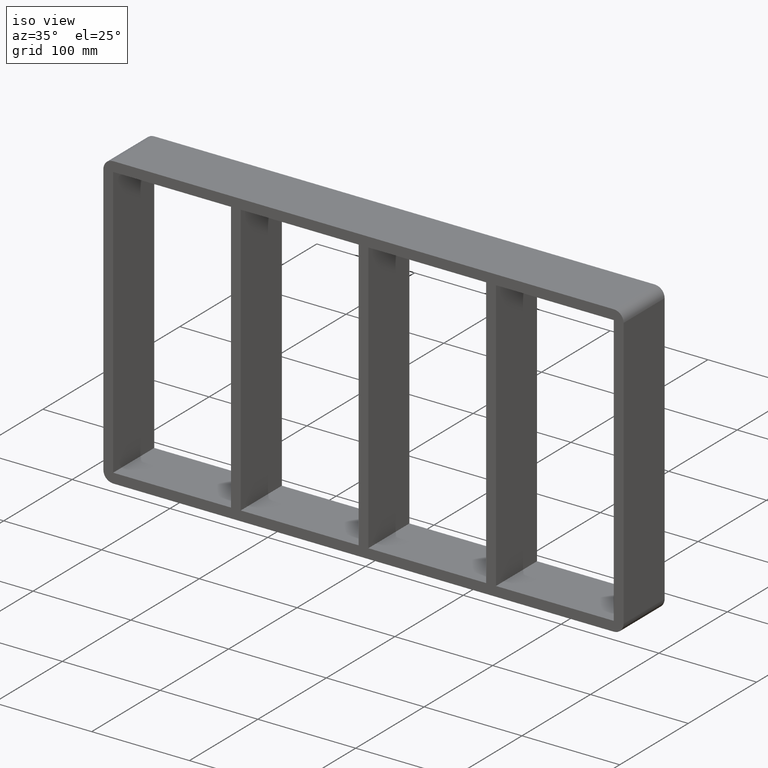
[diagram: clean part render]
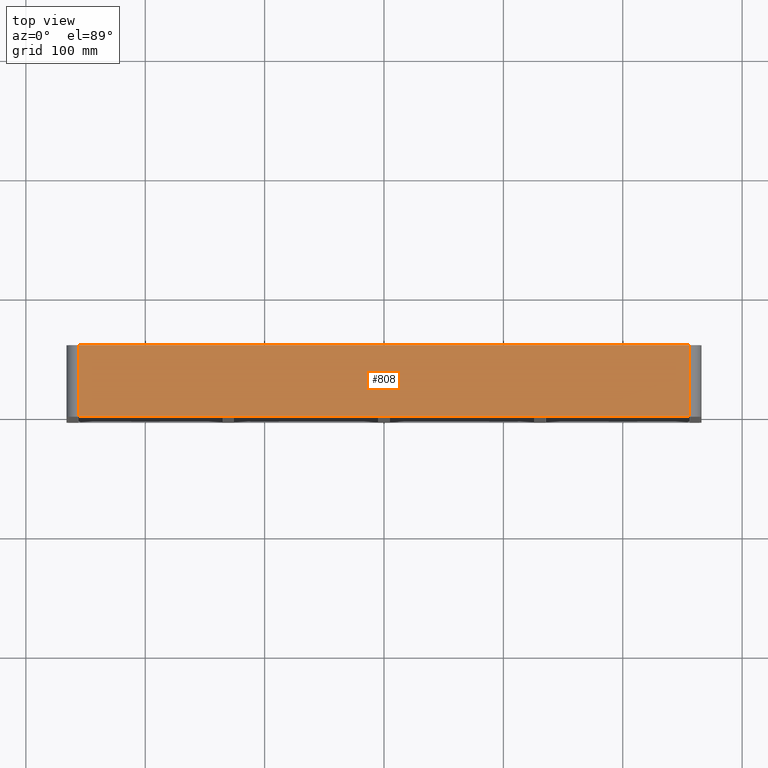
[diagram: tour spotlight — one face highlighted and labeled with its STEP entity id]
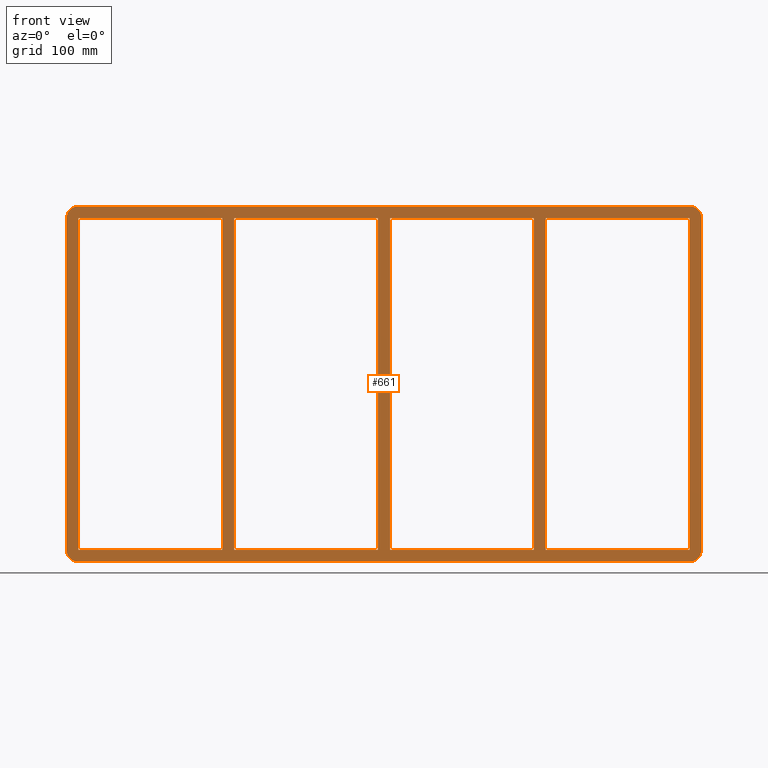
[diagram: tour spotlight — one face highlighted and labeled with its STEP entity id]
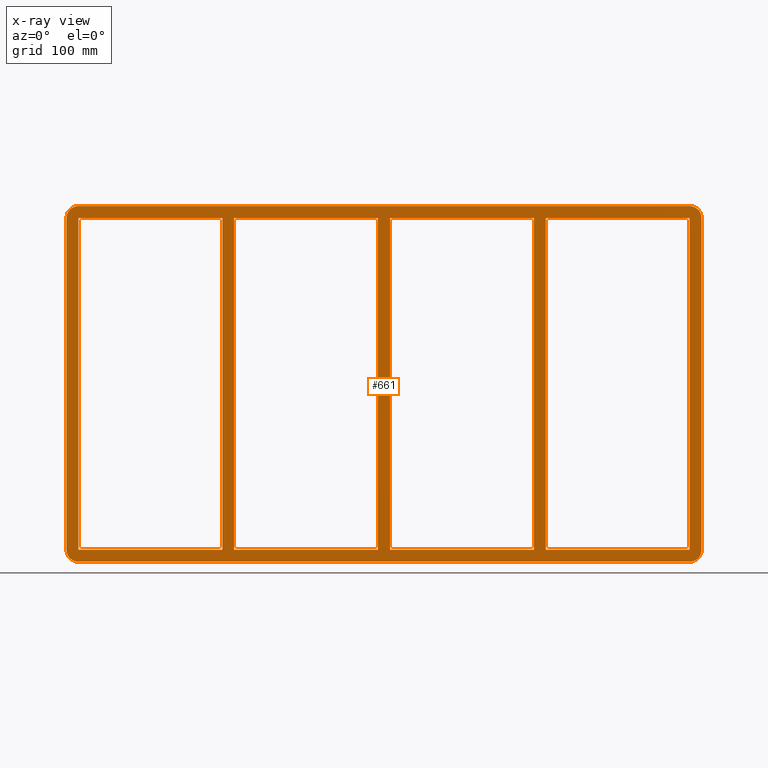
[diagram: x-ray of the same camera — body ghosted, this tour face saturated]
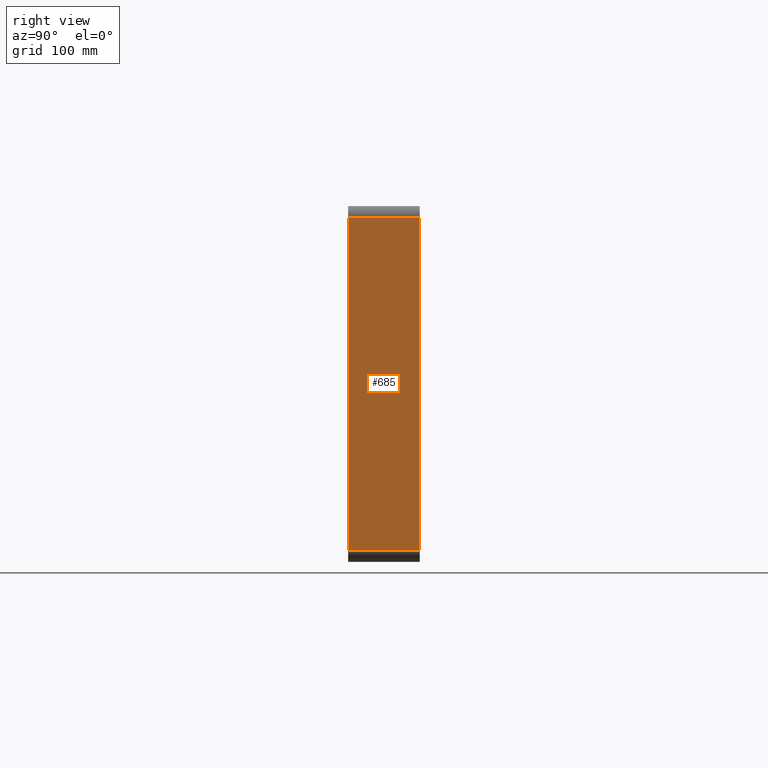
[diagram: tour spotlight — one face highlighted and labeled with its STEP entity id]
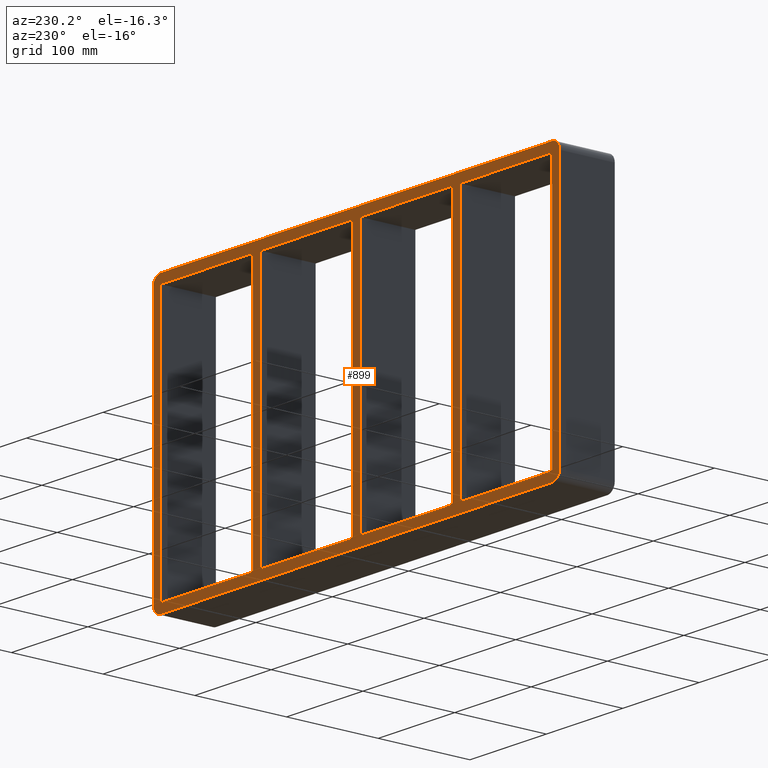
[diagram: tour spotlight — one face highlighted and labeled with its STEP entity id]
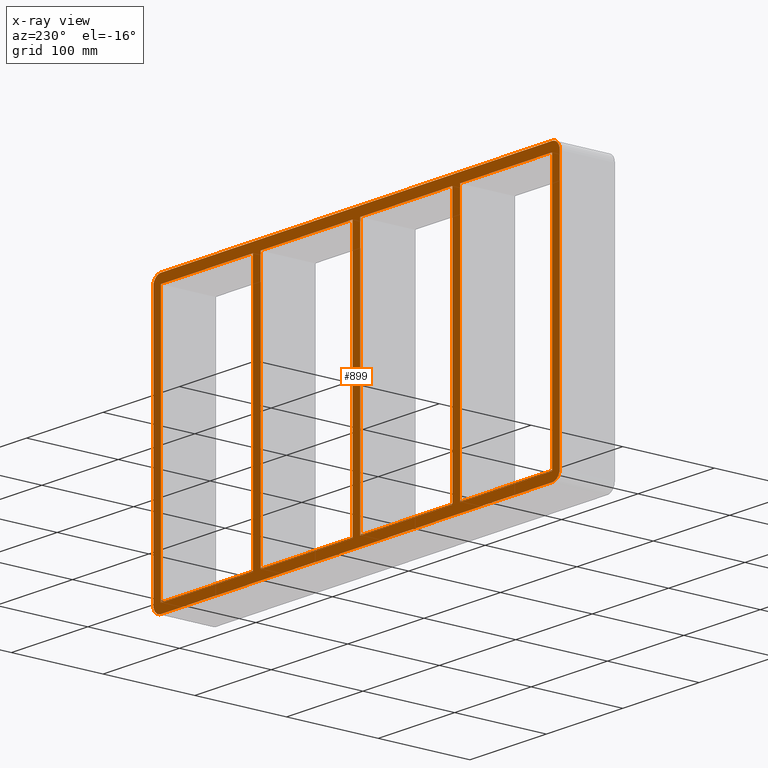
[diagram: x-ray of the same camera — body ghosted, this tour face saturated]
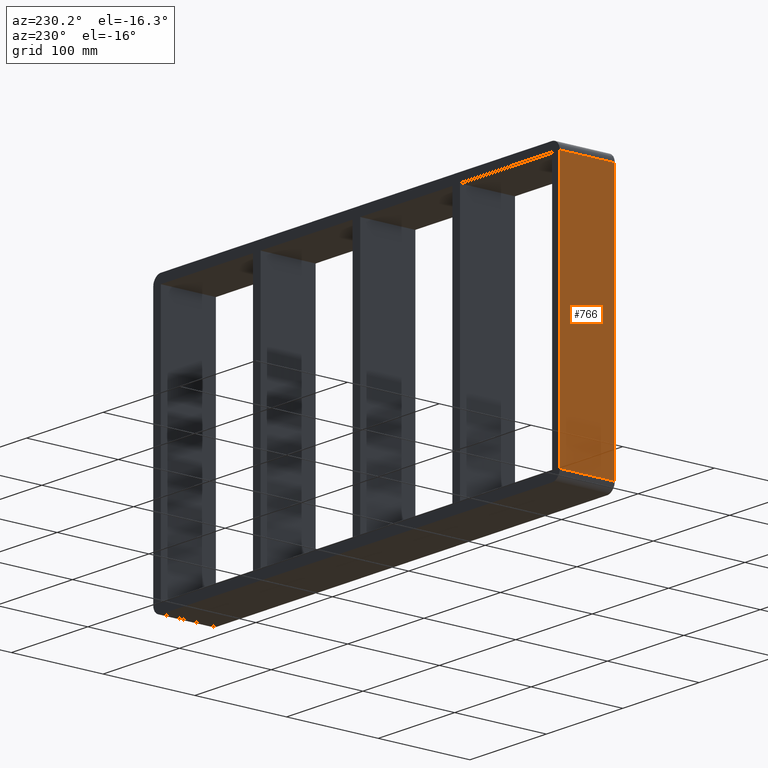
[diagram: tour spotlight — one face highlighted and labeled with its STEP entity id]
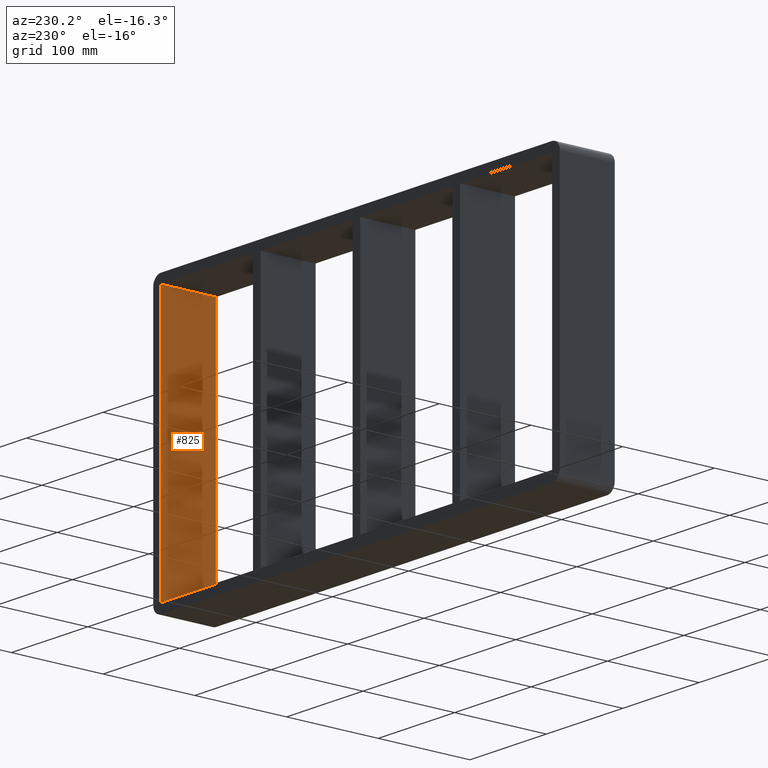
[diagram: tour spotlight — one face highlighted and labeled with its STEP entity id]
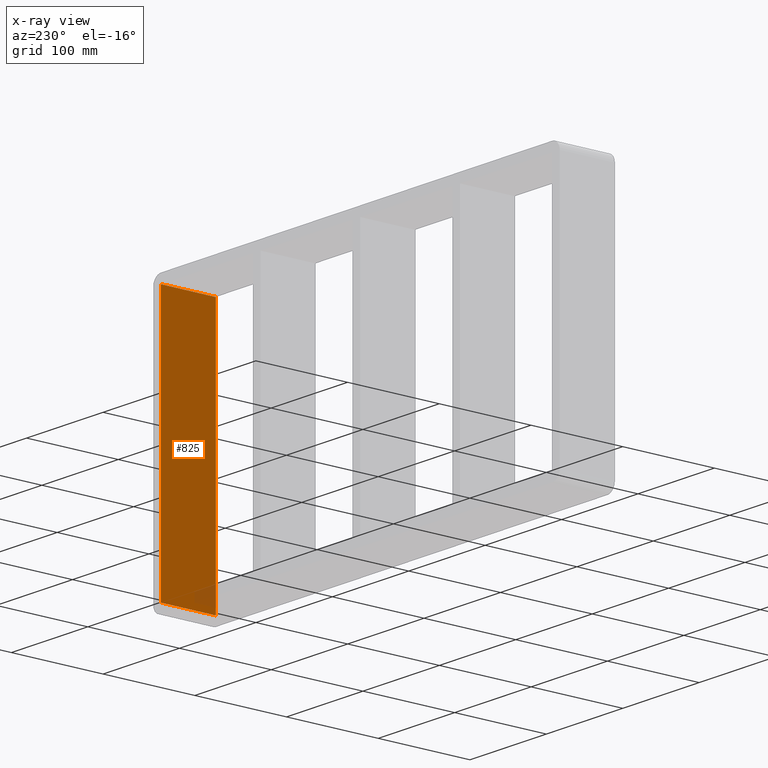
[diagram: x-ray of the same camera — body ghosted, this tour face saturated]
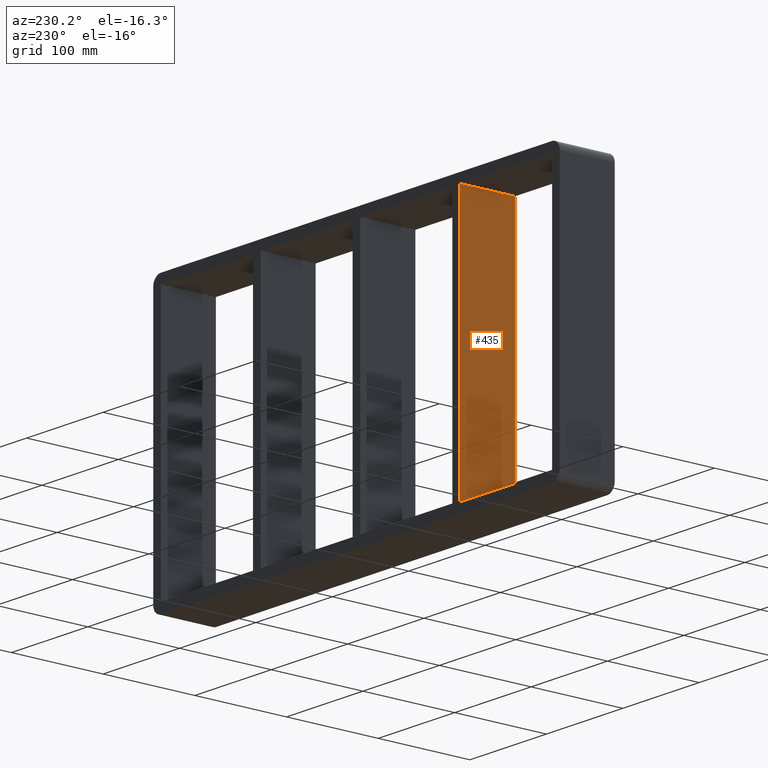
[diagram: tour spotlight — one face highlighted and labeled with its STEP entity id]
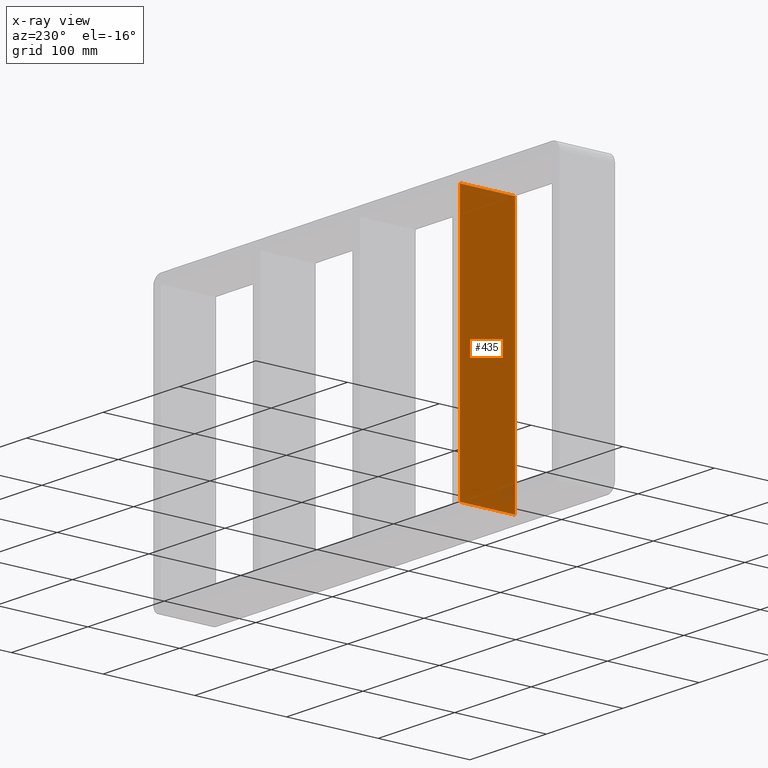
[diagram: x-ray of the same camera — body ghosted, this tour face saturated]
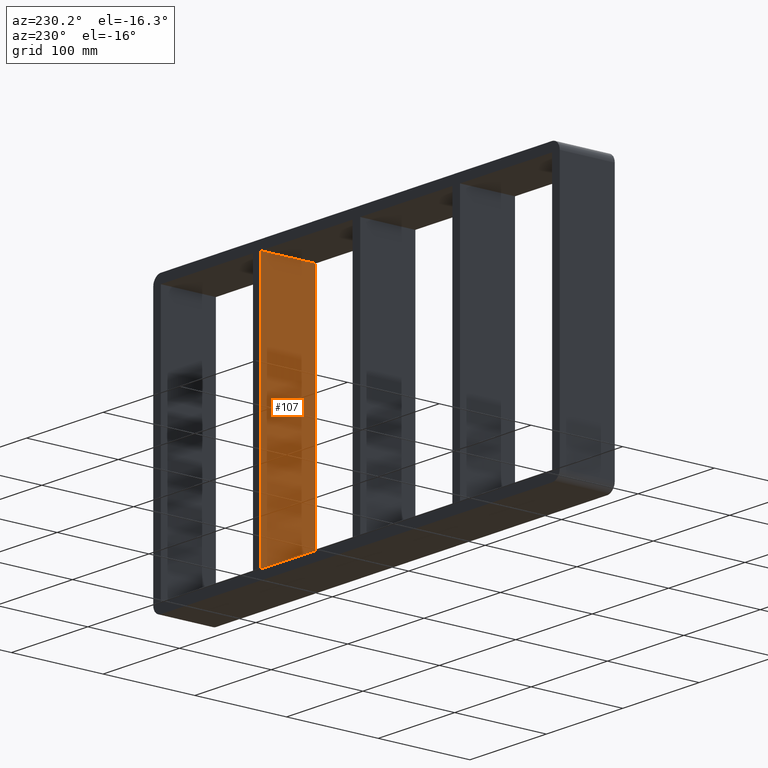
[diagram: tour spotlight — one face highlighted and labeled with its STEP entity id]
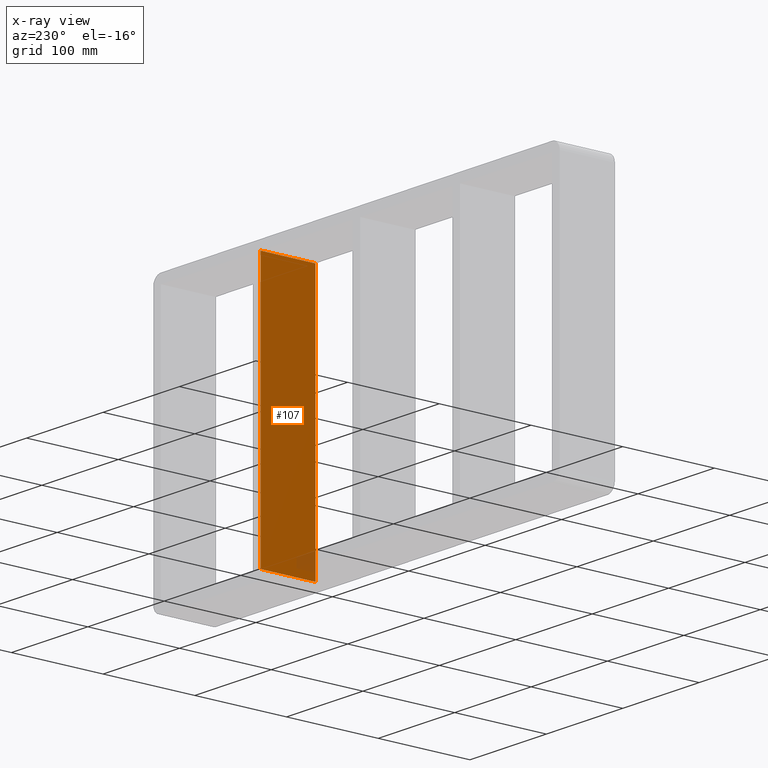
[diagram: x-ray of the same camera — body ghosted, this tour face saturated]
A machine part: a face-by-face anatomy tour. The part has 26 B-rep faces; the first image is the clean iso view, then the 8 largest visible faces are spotlighted one at a time (largest first), each with its STEP entity span.

Face 1 — top view, entity #808. In plain terms, the highlighted planar face has unit normal (0, 0, 1).
Definition (entity closure, byte-faithful):
#576=CARTESIAN_POINT('',(256.0,-3.0,149.00000000000003));
#577=VERTEX_POINT('',#576);
#585=CARTESIAN_POINT('',(-256.0,-3.0,149.00000000000003));
#586=VERTEX_POINT('',#585);
#587=CARTESIAN_POINT('',(256.0,-3.0,149.00000000000003));
#588=DIRECTION('',(-1.0,0.0,0.0));
#589=VECTOR('',#588,512.0);
#590=LINE('',#587,#589);
#591=EDGE_CURVE('',#577,#586,#590,.T.);
#693=CARTESIAN_POINT('',(256.0,57.0,149.00000000000003));
#694=VERTEX_POINT('',#693);
#702=CARTESIAN_POINT('',(256.0,57.0,149.00000000000003));
#703=DIRECTION('',(0.0,-1.0,0.0));
#704=VECTOR('',#703,60.0);
#705=LINE('',#702,#704);
#706=EDGE_CURVE('',#694,#577,#705,.T.);
#772=CARTESIAN_POINT('',(-256.0,57.0,149.00000000000003));
#773=VERTEX_POINT('',#772);
#783=CARTESIAN_POINT('',(-256.0,-3.0,149.00000000000003));
#784=DIRECTION('',(0.0,1.0,0.0));
#785=VECTOR('',#784,60.0);
#786=LINE('',#783,#785);
#787=EDGE_CURVE('',#586,#773,#786,.T.);
#792=CARTESIAN_POINT('',(-266.0,0.0,149.00000000000003));
#793=DIRECTION('',(0.0,0.0,1.0));
#794=DIRECTION('',(1.0,0.0,0.0));
#795=AXIS2_PLACEMENT_3D('',#792,#793,#794);
#796=PLANE('',#795);
#797=ORIENTED_EDGE('',*,*,#706,.F.);
#798=CARTESIAN_POINT('',(-256.0,57.0,149.00000000000003));
#799=DIRECTION('',(1.0,0.0,0.0));
#800=VECTOR('',#799,512.0);
#801=LINE('',#798,#800);
#802=EDGE_CURVE('',#773,#694,#801,.T.);
#803=ORIENTED_EDGE('',*,*,#802,.F.);
#804=ORIENTED_EDGE('',*,*,#787,.F.);
#805=ORIENTED_EDGE('',*,*,#591,.F.);
#806=EDGE_LOOP('',(#797,#803,#804,#805));
#807=FACE_OUTER_BOUND('',#806,.T.);
#808=ADVANCED_FACE('',(#807),#796,.T.);

Face 2 — front view, entity #661. An x-ray twin of the same camera follows (body ghosted, this face saturated) — the face is partly hidden behind the body. In plain terms, the highlighted planar face has unit normal (0, 1, 0).
Definition (entity closure, byte-faithful):
#73=CARTESIAN_POINT('',(125.49999999999872,-3.0,-139.0));
#74=VERTEX_POINT('',#73);
#75=CARTESIAN_POINT('',(125.49999999999869,-3.0,139.00000000000003));
#76=VERTEX_POINT('',#75);
#77=CARTESIAN_POINT('',(125.49999999999872,-3.0,-139.0));
#78=DIRECTION('',(0.0,0.0,1.0));
#79=VECTOR('',#78,278.0);
#80=LINE('',#77,#79);
#81=EDGE_CURVE('',#74,#76,#80,.T.);
#113=CARTESIAN_POINT('',(135.50000000000728,-3.0,139.00000000000003));
#114=VERTEX_POINT('',#113);
#115=CARTESIAN_POINT('',(135.50000000000728,-3.0,-138.99999999998417));
#116=VERTEX_POINT('',#115);
#117=CARTESIAN_POINT('',(135.50000000000728,-3.0,139.00000000000003));
#118=DIRECTION('',(0.0,0.0,-1.0));
#119=VECTOR('',#118,277.9999999999842);
#120=LINE('',#117,#119);
#121=EDGE_CURVE('',#114,#116,#120,.T.);
#153=CARTESIAN_POINT('',(-5.000000000001279,-3.0,-139.0));
#154=VERTEX_POINT('',#153);
#155=CARTESIAN_POINT('',(-5.000000000001315,-3.0,139.00000000000003));
#156=VERTEX_POINT('',#155);
#157=CARTESIAN_POINT('',(-5.000000000001279,-3.0,-139.0));
#158=DIRECTION('',(0.0,0.0,1.0));
#159=VECTOR('',#158,278.0);
#160=LINE('',#157,#159);
#161=EDGE_CURVE('',#154,#156,#160,.T.);
#193=CARTESIAN_POINT('',(5.000000000007283,-3.0,139.00000000000003));
#194=VERTEX_POINT('',#193);
#195=CARTESIAN_POINT('',(5.000000000007283,-3.0,-138.99999999998417));
#196=VERTEX_POINT('',#195);
#197=CARTESIAN_POINT('',(5.000000000007283,-3.0,139.00000000000003));
#198=DIRECTION('',(0.0,0.0,-1.0));
#199=VECTOR('',#198,277.9999999999842);
#200=LINE('',#197,#199);
#201=EDGE_CURVE('',#194,#196,#200,.T.);
#242=CARTESIAN_POINT('',(-125.49999999999272,-3.0,-138.99999999998417));
#243=VERTEX_POINT('',#242);
#250=CARTESIAN_POINT('',(-5.000000000001279,-3.0,-139.0));
#251=DIRECTION('',(-1.0,0.0,0.0));
#252=VECTOR('',#251,120.49999999999147);
#253=LINE('',#250,#252);
#254=EDGE_CURVE('',#154,#243,#253,.T.);
#272=CARTESIAN_POINT('',(125.49999999999874,-3.0,-139.0));
#273=DIRECTION('',(-1.0,0.0,0.0));
#274=VECTOR('',#273,120.49999999999145);
#275=LINE('',#272,#274);
#276=EDGE_CURVE('',#74,#196,#275,.T.);
#287=CARTESIAN_POINT('',(256.00000000000006,-3.0,-139.0));
#288=VERTEX_POINT('',#287);
#289=CARTESIAN_POINT('',(256.00000000000006,-3.0,-139.0));
#290=DIRECTION('',(-1.0,0.0,0.0));
#291=VECTOR('',#290,120.49999999999275);
#292=LINE('',#289,#291);
#293=EDGE_CURVE('',#288,#116,#292,.T.);
#318=CARTESIAN_POINT('',(-125.49999999999272,-3.0,139.00000000000003));
#319=VERTEX_POINT('',#318);
#320=CARTESIAN_POINT('',(-125.49999999999272,-3.0,139.00000000000003));
#321=DIRECTION('',(1.0,0.0,0.0));
#322=VECTOR('',#321,120.49999999999142);
#323=LINE('',#320,#322);
#324=EDGE_CURVE('',#319,#156,#323,.T.);
#357=CARTESIAN_POINT('',(256.00000000000006,-3.0,139.00000000000003));
#358=VERTEX_POINT('',#357);
#365=CARTESIAN_POINT('',(135.50000000000728,-3.0,139.00000000000003));
#366=DIRECTION('',(1.0,0.0,0.0));
#367=VECTOR('',#366,120.49999999999278);
#368=LINE('',#365,#367);
#369=EDGE_CURVE('',#114,#358,#368,.T.);
#380=CARTESIAN_POINT('',(5.000000000007276,-3.0,139.00000000000003));
#381=DIRECTION('',(1.0,0.0,0.0));
#382=VECTOR('',#381,120.49999999999142);
#383=LINE('',#380,#382);
#384=EDGE_CURVE('',#194,#76,#383,.T.);
#401=CARTESIAN_POINT('',(-135.50000000000128,-3.0,-139.0));
#402=VERTEX_POINT('',#401);
#403=CARTESIAN_POINT('',(-135.50000000000131,-3.0,139.00000000000003));
#404=VERTEX_POINT('',#403);
#405=CARTESIAN_POINT('',(-135.50000000000128,-3.0,-139.0));
#406=DIRECTION('',(0.0,0.0,1.0));
#407=VECTOR('',#406,278.0);
#408=LINE('',#405,#407);
#409=EDGE_CURVE('',#402,#404,#408,.T.);
#441=CARTESIAN_POINT('',(-125.49999999999272,-3.0,139.00000000000003));
#442=DIRECTION('',(0.0,0.0,-1.0));
#443=VECTOR('',#442,277.9999999999842);
#444=LINE('',#441,#443);
#445=EDGE_CURVE('',#319,#243,#444,.T.);
#472=CARTESIAN_POINT('',(-255.99999999999997,-3.0,-139.0));
#473=VERTEX_POINT('',#472);
#480=CARTESIAN_POINT('',(-135.50000000000128,-3.0,-139.0));
#481=DIRECTION('',(-1.0,0.0,0.0));
#482=VECTOR('',#481,120.49999999999869);
#483=LINE('',#480,#482);
#484=EDGE_CURVE('',#402,#473,#483,.T.);
#495=CARTESIAN_POINT('',(-255.99999999999997,-3.0,139.00000000000003));
#496=VERTEX_POINT('',#495);
#497=CARTESIAN_POINT('',(-255.99999999999997,-3.0,139.00000000000003));
#498=DIRECTION('',(1.0,0.0,0.0));
#499=VECTOR('',#498,120.49999999999866);
#500=LINE('',#497,#499);
#501=EDGE_CURVE('',#496,#404,#500,.T.);
#536=CARTESIAN_POINT('',(266.0,-3.0,-139.0));
#537=VERTEX_POINT('',#536);
#544=CARTESIAN_POINT('',(256.0,-3.0,-149.0));
#545=VERTEX_POINT('',#544);
#546=CARTESIAN_POINT('',(256.0,-3.0,-139.0));
#547=DIRECTION('',(0.0,1.0,0.0));
#548=DIRECTION('',(0.707106781186547,0.0,-0.707106781186547));
#549=AXIS2_PLACEMENT_3D('',#546,#547,#548);
#550=CIRCLE('',#549,9.999999999999998);
#551=EDGE_CURVE('',#537,#545,#550,.T.);
#562=CARTESIAN_POINT('',(0.0,-3.0,2.054581E-014));
#563=DIRECTION('',(0.0,1.0,0.0));
#564=DIRECTION('',(0.0,0.0,1.0));
#565=AXIS2_PLACEMENT_3D('',#562,#563,#564);
#566=PLANE('',#565);
#567=ORIENTED_EDGE('',*,*,#551,.F.);
#568=CARTESIAN_POINT('',(266.0,-3.0,139.00000000000003));
#569=VERTEX_POINT('',#568);
#570=CARTESIAN_POINT('',(266.0,-3.0,-138.99999999999997));
#571=DIRECTION('',(0.0,0.0,1.0));
#572=VECTOR('',#571,278.0);
#573=LINE('',#570,#572);
#574=EDGE_CURVE('',#537,#569,#573,.T.);
#575=ORIENTED_EDGE('',*,*,#574,.T.);
#576=CARTESIAN_POINT('',(256.0,-3.0,149.00000000000003));
#577=VERTEX_POINT('',#576);
#578=CARTESIAN_POINT('',(256.0,-3.0,139.00000000000003));
#579=DIRECTION('',(0.0,1.0,0.0));
#580=DIRECTION('',(0.707106781186547,0.0,0.707106781186547));
#581=AXIS2_PLACEMENT_3D('',#578,#579,#580);
#582=CIRCLE('',#581,9.999999999999998);
#583=EDGE_CURVE('',#577,#569,#582,.T.);
#584=ORIENTED_EDGE('',*,*,#583,.F.);
#585=CARTESIAN_POINT('',(-256.0,-3.0,149.00000000000003));
#586=VERTEX_POINT('',#585);
#587=CARTESIAN_POINT('',(256.0,-3.0,149.00000000000003));
#588=DIRECTION('',(-1.0,0.0,0.0));
#589=VECTOR('',#588,512.0);
#590=LINE('',#587,#589);
#591=EDGE_CURVE('',#577,#586,#590,.T.);
#592=ORIENTED_EDGE('',*,*,#591,.T.);
#593=CARTESIAN_POINT('',(-266.0,-3.0,139.00000000000003));
#594=VERTEX_POINT('',#593);
#595=CARTESIAN_POINT('',(-256.0,-3.0,139.00000000000003));
#596=DIRECTION('',(0.0,1.0,0.0));
#597=DIRECTION('',(-0.707106781186547,0.0,0.707106781186547));
#598=AXIS2_PLACEMENT_3D('',#595,#596,#597);
#599=CIRCLE('',#598,9.999999999999998);
#600=EDGE_CURVE('',#594,#586,#599,.T.);
#601=ORIENTED_EDGE('',*,*,#600,.F.);
#602=CARTESIAN_POINT('',(-266.0,-3.0,-139.0));
#603=VERTEX_POINT('',#602);
#604=CARTESIAN_POINT('',(-266.0,-3.0,139.0));
#605=DIRECTION('',(0.0,0.0,-1.0));
#606=VECTOR('',#605,278.0);
#607=LINE('',#604,#606);
#608=EDGE_CURVE('',#594,#603,#607,.T.);
#609=ORIENTED_EDGE('',*,*,#608,.T.);
#610=CARTESIAN_POINT('',(-256.0,-3.0,-149.0));
#611=VERTEX_POINT('',#610);
#612=CARTESIAN_POINT('',(-256.0,-3.0,-139.0));
#613=DIRECTION('',(0.0,1.0,0.0));
#614=DIRECTION('',(-0.707106781186547,0.0,-0.707106781186547));
#615=AXIS2_PLACEMENT_3D('',#612,#613,#614);
#616=CIRCLE('',#615,9.999999999999998);
#617=EDGE_CURVE('',#611,#603,#616,.T.);
#618=ORIENTED_EDGE('',*,*,#617,.F.);
#619=CARTESIAN_POINT('',(-256.0,-3.0,-149.0));
#620=DIRECTION('',(1.0,0.0,0.0));
#621=VECTOR('',#620,512.0);
#622=LINE('',#619,#621);
#623=EDGE_CURVE('',#611,#545,#622,.T.);
#624=ORIENTED_EDGE('',*,*,#623,.T.);
#625=EDGE_LOOP('',(#567,#575,#584,#592,#601,#609,#618,#624));
#626=FACE_OUTER_BOUND('',#625,.T.);
#627=ORIENTED_EDGE('',*,*,#276,.T.);
#628=ORIENTED_EDGE('',*,*,#201,.F.);
#629=ORIENTED_EDGE('',*,*,#384,.T.);
#630=ORIENTED_EDGE('',*,*,#81,.F.);
#631=EDGE_LOOP('',(#627,#628,#629,#630));
#632=FACE_BOUND('',#631,.T.);
#633=ORIENTED_EDGE('',*,*,#254,.T.);
#634=ORIENTED_EDGE('',*,*,#445,.F.);
#635=ORIENTED_EDGE('',*,*,#324,.T.);
#636=ORIENTED_EDGE('',*,*,#161,.F.);
#637=EDGE_LOOP('',(#633,#634,#635,#636));
#638=FACE_BOUND('',#637,.T.);
#639=ORIENTED_EDGE('',*,*,#484,.T.);
#640=CARTESIAN_POINT('',(-256.0,-3.0,-139.0));
#641=DIRECTION('',(0.0,0.0,1.0));
#642=VECTOR('',#641,278.0);
#643=LINE('',#640,#642);
#644=EDGE_CURVE('',#473,#496,#643,.T.);
#645=ORIENTED_EDGE('',*,*,#644,.T.);
#646=ORIENTED_EDGE('',*,*,#501,.T.);
#647=ORIENTED_EDGE('',*,*,#409,.F.);
#648=EDGE_LOOP('',(#639,#645,#646,#647));
#649=FACE_BOUND('',#648,.T.);
#650=ORIENTED_EDGE('',*,*,#121,.F.);
#651=ORIENTED_EDGE('',*,*,#369,.T.);
#652=CARTESIAN_POINT('',(256.00000000000006,-3.0,139.0));
#653=DIRECTION('',(0.0,0.0,-1.0));
#654=VECTOR('',#653,278.0);
#655=LINE('',#652,#654);
#656=EDGE_CURVE('',#358,#288,#655,.T.);
#657=ORIENTED_EDGE('',*,*,#656,.T.);
#658=ORIENTED_EDGE('',*,*,#293,.T.);
#659=EDGE_LOOP('',(#650,#651,#657,#658));
#660=FACE_BOUND('',#659,.T.);
#661=ADVANCED_FACE('',(#626,#632,#638,#649,#660),#566,.F.);

Face 3 — right view, entity #685. In plain terms, the highlighted planar face has unit normal (1, 0, 0).
Definition (entity closure, byte-faithful):
#527=CARTESIAN_POINT('',(266.0,57.0,-139.0));
#528=VERTEX_POINT('',#527);
#536=CARTESIAN_POINT('',(266.0,-3.0,-139.0));
#537=VERTEX_POINT('',#536);
#538=CARTESIAN_POINT('',(266.0,57.0,-139.0));
#539=DIRECTION('',(0.0,-1.0,0.0));
#540=VECTOR('',#539,60.0);
#541=LINE('',#538,#540);
#542=EDGE_CURVE('',#528,#537,#541,.T.);
#568=CARTESIAN_POINT('',(266.0,-3.0,139.00000000000003));
#569=VERTEX_POINT('',#568);
#570=CARTESIAN_POINT('',(266.0,-3.0,-138.99999999999997));
#571=DIRECTION('',(0.0,0.0,1.0));
#572=VECTOR('',#571,278.0);
#573=LINE('',#570,#572);
#574=EDGE_CURVE('',#537,#569,#573,.T.);
#662=CARTESIAN_POINT('',(266.0,0.0,149.00000000000003));
#663=DIRECTION('',(1.0,0.0,0.0));
#664=DIRECTION('',(0.0,0.0,-1.0));
#665=AXIS2_PLACEMENT_3D('',#662,#663,#664);
#666=PLANE('',#665);
#667=ORIENTED_EDGE('',*,*,#542,.F.);
#668=CARTESIAN_POINT('',(266.0,57.0,139.00000000000003));
#669=VERTEX_POINT('',#668);
#670=CARTESIAN_POINT('',(266.0,57.0,139.00000000000003));
#671=DIRECTION('',(0.0,0.0,-1.0));
#672=VECTOR('',#671,278.0);
#673=LINE('',#670,#672);
#674=EDGE_CURVE('',#669,#528,#673,.T.);
#675=ORIENTED_EDGE('',*,*,#674,.F.);
#676=CARTESIAN_POINT('',(266.0,-3.0,139.00000000000003));
#677=DIRECTION('',(0.0,1.0,0.0));
#678=VECTOR('',#677,60.0);
#679=LINE('',#676,#678);
#680=EDGE_CURVE('',#569,#669,#679,.T.);
#681=ORIENTED_EDGE('',*,*,#680,.F.);
#682=ORIENTED_EDGE('',*,*,#574,.F.);
#683=EDGE_LOOP('',(#667,#675,#681,#682));
#684=FACE_OUTER_BOUND('',#683,.T.);
#685=ADVANCED_FACE('',(#684),#666,.T.);

Face 4 — auxiliary view, entity #899. An x-ray twin of the same camera follows (body ghosted, this face saturated) — the face is partly hidden behind the body. In plain terms, the highlighted planar face has unit normal (0, 1, 0).
Definition (entity closure, byte-faithful):
#83=CARTESIAN_POINT('',(125.49999999999869,57.0,139.00000000000003));
#84=VERTEX_POINT('',#83);
#91=CARTESIAN_POINT('',(125.49999999999872,57.0,-139.0));
#92=VERTEX_POINT('',#91);
#93=CARTESIAN_POINT('',(125.49999999999872,57.0,-139.0));
#94=DIRECTION('',(0.0,0.0,1.0));
#95=VECTOR('',#94,278.0);
#96=LINE('',#93,#95);
#97=EDGE_CURVE('',#92,#84,#96,.T.);
#123=CARTESIAN_POINT('',(135.50000000000728,57.0,-138.99999999998417));
#124=VERTEX_POINT('',#123);
#131=CARTESIAN_POINT('',(135.50000000000728,57.0,139.00000000000003));
#132=VERTEX_POINT('',#131);
#133=CARTESIAN_POINT('',(135.50000000000728,57.0,139.00000000000003));
#134=DIRECTION('',(0.0,0.0,-1.0));
#135=VECTOR('',#134,277.9999999999842);
#136=LINE('',#133,#135);
#137=EDGE_CURVE('',#132,#124,#136,.T.);
#163=CARTESIAN_POINT('',(-5.000000000001315,57.0,139.00000000000003));
#164=VERTEX_POINT('',#163);
#171=CARTESIAN_POINT('',(-5.000000000001279,57.0,-139.0));
#172=VERTEX_POINT('',#171);
#173=CARTESIAN_POINT('',(-5.000000000001279,57.0,-139.0));
#174=DIRECTION('',(0.0,0.0,1.0));
#175=VECTOR('',#174,278.0);
#176=LINE('',#173,#175);
#177=EDGE_CURVE('',#172,#164,#176,.T.);
#203=CARTESIAN_POINT('',(5.000000000007283,57.0,-138.99999999998417));
#204=VERTEX_POINT('',#203);
#211=CARTESIAN_POINT('',(5.000000000007283,57.0,139.00000000000003));
#212=VERTEX_POINT('',#211);
#213=CARTESIAN_POINT('',(5.000000000007283,57.0,139.00000000000003));
#214=DIRECTION('',(0.0,0.0,-1.0));
#215=VECTOR('',#214,277.9999999999842);
#216=LINE('',#213,#215);
#217=EDGE_CURVE('',#212,#204,#216,.T.);
#234=CARTESIAN_POINT('',(-125.49999999999272,57.0,-138.99999999998417));
#235=VERTEX_POINT('',#234);
#236=CARTESIAN_POINT('',(-125.49999999999275,57.0,-139.0));
#237=DIRECTION('',(1.0,0.0,0.0));
#238=VECTOR('',#237,120.49999999999147);
#239=LINE('',#236,#238);
#240=EDGE_CURVE('',#235,#172,#239,.T.);
#265=CARTESIAN_POINT('',(5.00000000000729,57.0,-139.0));
#266=DIRECTION('',(1.0,0.0,0.0));
#267=VECTOR('',#266,120.49999999999145);
#268=LINE('',#265,#267);
#269=EDGE_CURVE('',#204,#92,#268,.T.);
#295=CARTESIAN_POINT('',(256.00000000000006,57.0,-139.0));
#296=VERTEX_POINT('',#295);
#303=CARTESIAN_POINT('',(135.5000000000073,57.0,-139.0));
#304=DIRECTION('',(1.0,0.0,0.0));
#305=VECTOR('',#304,120.49999999999275);
#306=LINE('',#303,#305);
#307=EDGE_CURVE('',#124,#296,#306,.T.);
#326=CARTESIAN_POINT('',(-125.49999999999272,57.0,139.00000000000003));
#327=VERTEX_POINT('',#326);
#334=CARTESIAN_POINT('',(-5.000000000001307,57.0,139.00000000000003));
#335=DIRECTION('',(-1.0,0.0,0.0));
#336=VECTOR('',#335,120.49999999999142);
#337=LINE('',#334,#336);
#338=EDGE_CURVE('',#164,#327,#337,.T.);
#349=CARTESIAN_POINT('',(256.00000000000006,57.0,139.00000000000003));
#350=VERTEX_POINT('',#349);
#351=CARTESIAN_POINT('',(256.00000000000006,57.0,139.00000000000003));
#352=DIRECTION('',(-1.0,0.0,0.0));
#353=VECTOR('',#352,120.49999999999278);
#354=LINE('',#351,#353);
#355=EDGE_CURVE('',#350,#132,#354,.T.);
#387=CARTESIAN_POINT('',(125.49999999999869,57.0,139.00000000000003));
#388=DIRECTION('',(-1.0,0.0,0.0));
#389=VECTOR('',#388,120.49999999999142);
#390=LINE('',#387,#389);
#391=EDGE_CURVE('',#84,#212,#390,.T.);
#411=CARTESIAN_POINT('',(-135.50000000000131,57.0,139.00000000000003));
#412=VERTEX_POINT('',#411);
#419=CARTESIAN_POINT('',(-135.50000000000128,57.0,-139.0));
#420=VERTEX_POINT('',#419);
#421=CARTESIAN_POINT('',(-135.50000000000128,57.0,-139.0));
#422=DIRECTION('',(0.0,0.0,1.0));
#423=VECTOR('',#422,278.0);
#424=LINE('',#421,#423);
#425=EDGE_CURVE('',#420,#412,#424,.T.);
#448=CARTESIAN_POINT('',(-125.49999999999272,57.0,139.00000000000003));
#449=DIRECTION('',(0.0,0.0,-1.0));
#450=VECTOR('',#449,277.9999999999842);
#451=LINE('',#448,#450);
#452=EDGE_CURVE('',#327,#235,#451,.T.);
#464=CARTESIAN_POINT('',(-255.99999999999997,57.0,-139.0));
#465=VERTEX_POINT('',#464);
#466=CARTESIAN_POINT('',(-255.99999999999997,57.0,-139.0));
#467=DIRECTION('',(1.0,0.0,0.0));
#468=VECTOR('',#467,120.49999999999869);
#469=LINE('',#466,#468);
#470=EDGE_CURVE('',#465,#420,#469,.T.);
#503=CARTESIAN_POINT('',(-255.99999999999997,57.0,139.00000000000003));
#504=VERTEX_POINT('',#503);
#511=CARTESIAN_POINT('',(-135.50000000000131,57.0,139.00000000000003));
#512=DIRECTION('',(-1.0,0.0,0.0));
#513=VECTOR('',#512,120.49999999999866);
#514=LINE('',#511,#513);
#515=EDGE_CURVE('',#412,#504,#514,.T.);
#525=CARTESIAN_POINT('',(256.0,57.0,-149.0));
#526=VERTEX_POINT('',#525);
#527=CARTESIAN_POINT('',(266.0,57.0,-139.0));
#528=VERTEX_POINT('',#527);
#529=CARTESIAN_POINT('',(256.0,57.0,-139.0));
#530=DIRECTION('',(0.0,-1.0,0.0));
#531=DIRECTION('',(0.707106781186547,0.0,-0.707106781186547));
#532=AXIS2_PLACEMENT_3D('',#529,#530,#531);
#533=CIRCLE('',#532,9.999999999999998);
#534=EDGE_CURVE('',#526,#528,#533,.T.);
#668=CARTESIAN_POINT('',(266.0,57.0,139.00000000000003));
#669=VERTEX_POINT('',#668);
#670=CARTESIAN_POINT('',(266.0,57.0,139.00000000000003));
#671=DIRECTION('',(0.0,0.0,-1.0));
#672=VECTOR('',#671,278.0);
#673=LINE('',#670,#672);
#674=EDGE_CURVE('',#669,#528,#673,.T.);
#693=CARTESIAN_POINT('',(256.0,57.0,149.00000000000003));
#694=VERTEX_POINT('',#693);
#695=CARTESIAN_POINT('',(256.0,57.0,139.00000000000003));
#696=DIRECTION('',(0.0,-1.0,0.0));
#697=DIRECTION('',(0.707106781186547,0.0,0.707106781186547));
#698=AXIS2_PLACEMENT_3D('',#695,#696,#697);
#699=CIRCLE('',#698,9.999999999999998);
#700=EDGE_CURVE('',#669,#694,#699,.T.);
#716=CARTESIAN_POINT('',(-266.0,57.0,-139.0));
#717=VERTEX_POINT('',#716);
#718=CARTESIAN_POINT('',(-256.0,57.0,-149.0));
#719=VERTEX_POINT('',#718);
#720=CARTESIAN_POINT('',(-256.0,57.0,-139.0));
#721=DIRECTION('',(0.0,-1.0,0.0));
#722=DIRECTION('',(-0.707106781186547,0.0,-0.707106781186547));
#723=AXIS2_PLACEMENT_3D('',#720,#721,#722);
#724=CIRCLE('',#723,9.999999999999998);
#725=EDGE_CURVE('',#717,#719,#724,.T.);
#750=CARTESIAN_POINT('',(-266.0,57.0,139.00000000000003));
#751=VERTEX_POINT('',#750);
#758=CARTESIAN_POINT('',(-266.0,57.0,-139.0));
#759=DIRECTION('',(0.0,0.0,1.0));
#760=VECTOR('',#759,278.0);
#761=LINE('',#758,#760);
#762=EDGE_CURVE('',#717,#751,#761,.T.);
#772=CARTESIAN_POINT('',(-256.0,57.0,149.00000000000003));
#773=VERTEX_POINT('',#772);
#774=CARTESIAN_POINT('',(-256.0,57.0,139.00000000000003));
#775=DIRECTION('',(0.0,-1.0,0.0));
#776=DIRECTION('',(-0.707106781186547,0.0,0.707106781186547));
#777=AXIS2_PLACEMENT_3D('',#774,#775,#776);
#778=CIRCLE('',#777,9.999999999999998);
#779=EDGE_CURVE('',#773,#751,#778,.T.);
#798=CARTESIAN_POINT('',(-256.0,57.0,149.00000000000003));
#799=DIRECTION('',(1.0,0.0,0.0));
#800=VECTOR('',#799,512.0);
#801=LINE('',#798,#800);
#802=EDGE_CURVE('',#773,#694,#801,.T.);
#817=CARTESIAN_POINT('',(256.00000000000006,57.0,-139.0));
#818=DIRECTION('',(0.0,0.0,1.0));
#819=VECTOR('',#818,278.0);
#820=LINE('',#817,#819);
#821=EDGE_CURVE('',#296,#350,#820,.T.);
#834=CARTESIAN_POINT('',(-256.0,57.0,139.0));
#835=DIRECTION('',(0.0,0.0,-1.0));
#836=VECTOR('',#835,278.0);
#837=LINE('',#834,#836);
#838=EDGE_CURVE('',#504,#465,#837,.T.);
#851=CARTESIAN_POINT('',(256.0,57.0,-149.0));
#852=DIRECTION('',(-1.0,0.0,0.0));
#853=VECTOR('',#852,512.0);
#854=LINE('',#851,#853);
#855=EDGE_CURVE('',#526,#719,#854,.T.);
#860=CARTESIAN_POINT('',(0.0,57.0,2.054581E-014));
#861=DIRECTION('',(0.0,1.0,0.0));
#862=DIRECTION('',(0.0,0.0,1.0));
#863=AXIS2_PLACEMENT_3D('',#860,#861,#862);
#864=PLANE('',#863);
#865=ORIENTED_EDGE('',*,*,#534,.F.);
#866=ORIENTED_EDGE('',*,*,#855,.T.);
#867=ORIENTED_EDGE('',*,*,#725,.F.);
#868=ORIENTED_EDGE('',*,*,#762,.T.);
#869=ORIENTED_EDGE('',*,*,#779,.F.);
#870=ORIENTED_EDGE('',*,*,#802,.T.);
#871=ORIENTED_EDGE('',*,*,#700,.F.);
#872=ORIENTED_EDGE('',*,*,#674,.T.);
#873=EDGE_LOOP('',(#865,#866,#867,#868,#869,#870,#871,#872));
#874=FACE_OUTER_BOUND('',#873,.T.);
#875=ORIENTED_EDGE('',*,*,#307,.T.);
#876=ORIENTED_EDGE('',*,*,#821,.T.);
#877=ORIENTED_EDGE('',*,*,#355,.T.);
#878=ORIENTED_EDGE('',*,*,#137,.T.);
#879=EDGE_LOOP('',(#875,#876,#877,#878));
#880=FACE_BOUND('',#879,.T.);
#881=ORIENTED_EDGE('',*,*,#97,.T.);
#882=ORIENTED_EDGE('',*,*,#391,.T.);
#883=ORIENTED_EDGE('',*,*,#217,.T.);
#884=ORIENTED_EDGE('',*,*,#269,.T.);
#885=EDGE_LOOP('',(#881,#882,#883,#884));
#886=FACE_BOUND('',#885,.T.);
#887=ORIENTED_EDGE('',*,*,#177,.T.);
#888=ORIENTED_EDGE('',*,*,#338,.T.);
#889=ORIENTED_EDGE('',*,*,#452,.T.);
#890=ORIENTED_EDGE('',*,*,#240,.T.);
#891=EDGE_LOOP('',(#887,#888,#889,#890));
#892=FACE_BOUND('',#891,.T.);
#893=ORIENTED_EDGE('',*,*,#425,.T.);
#894=ORIENTED_EDGE('',*,*,#515,.T.);
#895=ORIENTED_EDGE('',*,*,#838,.T.);
#896=ORIENTED_EDGE('',*,*,#470,.T.);
#897=EDGE_LOOP('',(#893,#894,#895,#896));
#898=FACE_BOUND('',#897,.T.);
#899=ADVANCED_FACE('',(#874,#880,#886,#892,#898),#864,.T.);

Face 5 — auxiliary view, entity #766. In plain terms, the highlighted planar face has unit normal (-1, 0, 0).
Definition (entity closure, byte-faithful):
#593=CARTESIAN_POINT('',(-266.0,-3.0,139.00000000000003));
#594=VERTEX_POINT('',#593);
#602=CARTESIAN_POINT('',(-266.0,-3.0,-139.0));
#603=VERTEX_POINT('',#602);
#604=CARTESIAN_POINT('',(-266.0,-3.0,139.0));
#605=DIRECTION('',(0.0,0.0,-1.0));
#606=VECTOR('',#605,278.0);
#607=LINE('',#604,#606);
#608=EDGE_CURVE('',#594,#603,#607,.T.);
#716=CARTESIAN_POINT('',(-266.0,57.0,-139.0));
#717=VERTEX_POINT('',#716);
#734=CARTESIAN_POINT('',(-266.0,-3.0,-139.0));
#735=DIRECTION('',(0.0,1.0,0.0));
#736=VECTOR('',#735,60.0);
#737=LINE('',#734,#736);
#738=EDGE_CURVE('',#603,#717,#737,.T.);
#743=CARTESIAN_POINT('',(-266.0,0.0,-149.0));
#744=DIRECTION('',(-1.0,0.0,0.0));
#745=DIRECTION('',(0.0,0.0,1.0));
#746=AXIS2_PLACEMENT_3D('',#743,#744,#745);
#747=PLANE('',#746);
#748=ORIENTED_EDGE('',*,*,#738,.F.);
#749=ORIENTED_EDGE('',*,*,#608,.F.);
#750=CARTESIAN_POINT('',(-266.0,57.0,139.00000000000003));
#751=VERTEX_POINT('',#750);
#752=CARTESIAN_POINT('',(-266.0,57.0,139.00000000000003));
#753=DIRECTION('',(0.0,-1.0,0.0));
#754=VECTOR('',#753,60.0);
#755=LINE('',#752,#754);
#756=EDGE_CURVE('',#751,#594,#755,.T.);
#757=ORIENTED_EDGE('',*,*,#756,.F.);
#758=CARTESIAN_POINT('',(-266.0,57.0,-139.0));
#759=DIRECTION('',(0.0,0.0,1.0));
#760=VECTOR('',#759,278.0);
#761=LINE('',#758,#760);
#762=EDGE_CURVE('',#717,#751,#761,.T.);
#763=ORIENTED_EDGE('',*,*,#762,.F.);
#764=EDGE_LOOP('',(#748,#749,#757,#763));
#765=FACE_OUTER_BOUND('',#764,.T.);
#766=ADVANCED_FACE('',(#765),#747,.T.);

Face 6 — auxiliary view, entity #825. An x-ray twin of the same camera follows (body ghosted, this face saturated) — the face is partly hidden behind the body. In plain terms, the highlighted planar face has unit normal (1, 0, 0).
Definition (entity closure, byte-faithful):
#287=CARTESIAN_POINT('',(256.00000000000006,-3.0,-139.0));
#288=VERTEX_POINT('',#287);
#295=CARTESIAN_POINT('',(256.00000000000006,57.0,-139.0));
#296=VERTEX_POINT('',#295);
#297=CARTESIAN_POINT('',(256.00000000000006,57.0,-139.0));
#298=DIRECTION('',(0.0,-1.0,0.0));
#299=VECTOR('',#298,60.0);
#300=LINE('',#297,#299);
#301=EDGE_CURVE('',#296,#288,#300,.T.);
#349=CARTESIAN_POINT('',(256.00000000000006,57.0,139.00000000000003));
#350=VERTEX_POINT('',#349);
#357=CARTESIAN_POINT('',(256.00000000000006,-3.0,139.00000000000003));
#358=VERTEX_POINT('',#357);
#359=CARTESIAN_POINT('',(256.00000000000006,-3.0,139.00000000000003));
#360=DIRECTION('',(0.0,1.0,0.0));
#361=VECTOR('',#360,60.0);
#362=LINE('',#359,#361);
#363=EDGE_CURVE('',#358,#350,#362,.T.);
#652=CARTESIAN_POINT('',(256.00000000000006,-3.0,139.0));
#653=DIRECTION('',(0.0,0.0,-1.0));
#654=VECTOR('',#653,278.0);
#655=LINE('',#652,#654);
#656=EDGE_CURVE('',#358,#288,#655,.T.);
#809=CARTESIAN_POINT('',(256.00000000000006,0.0,139.00000000000003));
#810=DIRECTION('',(1.0,0.0,0.0));
#811=DIRECTION('',(0.0,0.0,-1.0));
#812=AXIS2_PLACEMENT_3D('',#809,#810,#811);
#813=PLANE('',#812);
#814=ORIENTED_EDGE('',*,*,#301,.T.);
#815=ORIENTED_EDGE('',*,*,#656,.F.);
#816=ORIENTED_EDGE('',*,*,#363,.T.);
#817=CARTESIAN_POINT('',(256.00000000000006,57.0,-139.0));
#818=DIRECTION('',(0.0,0.0,1.0));
#819=VECTOR('',#818,278.0);
#820=LINE('',#817,#819);
#821=EDGE_CURVE('',#296,#350,#820,.T.);
#822=ORIENTED_EDGE('',*,*,#821,.F.);
#823=EDGE_LOOP('',(#814,#815,#816,#822));
#824=FACE_OUTER_BOUND('',#823,.T.);
#825=ADVANCED_FACE('',(#824),#813,.F.);

Face 7 — auxiliary view, entity #435. An x-ray twin of the same camera follows (body ghosted, this face saturated) — the face is partly hidden behind the body. In plain terms, the highlighted planar face has unit normal (-1, 0, 0).
Definition (entity closure, byte-faithful):
#396=CARTESIAN_POINT('',(-135.50000000000128,-3.0,-139.0));
#397=DIRECTION('',(-1.0,0.0,0.0));
#398=DIRECTION('',(0.0,0.0,1.0));
#399=AXIS2_PLACEMENT_3D('',#396,#397,#398);
#400=PLANE('',#399);
#401=CARTESIAN_POINT('',(-135.50000000000128,-3.0,-139.0));
#402=VERTEX_POINT('',#401);
#403=CARTESIAN_POINT('',(-135.50000000000131,-3.0,139.00000000000003));
#404=VERTEX_POINT('',#403);
#405=CARTESIAN_POINT('',(-135.50000000000128,-3.0,-139.0));
#406=DIRECTION('',(0.0,0.0,1.0));
#407=VECTOR('',#406,278.0);
#408=LINE('',#405,#407);
#409=EDGE_CURVE('',#402,#404,#408,.T.);
#410=ORIENTED_EDGE('',*,*,#409,.T.);
#411=CARTESIAN_POINT('',(-135.50000000000131,57.0,139.00000000000003));
#412=VERTEX_POINT('',#411);
#413=CARTESIAN_POINT('',(-135.50000000000134,57.000000000000007,139.00000000000003));
#414=DIRECTION('',(0.0,-1.0,0.0));
#415=VECTOR('',#414,60.000000000000007);
#416=LINE('',#413,#415);
#417=EDGE_CURVE('',#412,#404,#416,.T.);
#418=ORIENTED_EDGE('',*,*,#417,.F.);
#419=CARTESIAN_POINT('',(-135.50000000000128,57.0,-139.0));
#420=VERTEX_POINT('',#419);
#421=CARTESIAN_POINT('',(-135.50000000000128,57.0,-139.0));
#422=DIRECTION('',(0.0,0.0,1.0));
#423=VECTOR('',#422,278.0);
#424=LINE('',#421,#423);
#425=EDGE_CURVE('',#420,#412,#424,.T.);
#426=ORIENTED_EDGE('',*,*,#425,.F.);
#427=CARTESIAN_POINT('',(-135.50000000000128,-3.0,-139.0));
#428=DIRECTION('',(0.0,1.0,0.0));
#429=VECTOR('',#428,60.000000000000007);
#430=LINE('',#427,#429);
#431=EDGE_CURVE('',#402,#420,#430,.T.);
#432=ORIENTED_EDGE('',*,*,#431,.F.);
#433=EDGE_LOOP('',(#410,#418,#426,#432));
#434=FACE_OUTER_BOUND('',#433,.T.);
#435=ADVANCED_FACE('',(#434),#400,.T.);

Face 8 — auxiliary view, entity #107. An x-ray twin of the same camera follows (body ghosted, this face saturated) — the face is partly hidden behind the body. In plain terms, the highlighted planar face has unit normal (-1, 0, 0).
Definition (entity closure, byte-faithful):
#68=CARTESIAN_POINT('',(125.49999999999872,-3.0,-139.0));
#69=DIRECTION('',(-1.0,0.0,0.0));
#70=DIRECTION('',(0.0,0.0,1.0));
#71=AXIS2_PLACEMENT_3D('',#68,#69,#70);
#72=PLANE('',#71);
#73=CARTESIAN_POINT('',(125.49999999999872,-3.0,-139.0));
#74=VERTEX_POINT('',#73);
#75=CARTESIAN_POINT('',(125.49999999999869,-3.0,139.00000000000003));
#76=VERTEX_POINT('',#75);
#77=CARTESIAN_POINT('',(125.49999999999872,-3.0,-139.0));
#78=DIRECTION('',(0.0,0.0,1.0));
#79=VECTOR('',#78,278.0);
#80=LINE('',#77,#79);
#81=EDGE_CURVE('',#74,#76,#80,.T.);
#82=ORIENTED_EDGE('',*,*,#81,.T.);
#83=CARTESIAN_POINT('',(125.49999999999869,57.0,139.00000000000003));
#84=VERTEX_POINT('',#83);
#85=CARTESIAN_POINT('',(125.49999999999872,57.000000000000007,139.00000000000003));
#86=DIRECTION('',(0.0,-1.0,0.0));
#87=VECTOR('',#86,60.000000000000007);
#88=LINE('',#85,#87);
#89=EDGE_CURVE('',#84,#76,#88,.T.);
#90=ORIENTED_EDGE('',*,*,#89,.F.);
#91=CARTESIAN_POINT('',(125.49999999999872,57.0,-139.0));
#92=VERTEX_POINT('',#91);
#93=CARTESIAN_POINT('',(125.49999999999872,57.0,-139.0));
#94=DIRECTION('',(0.0,0.0,1.0));
#95=VECTOR('',#94,278.0);
#96=LINE('',#93,#95);
#97=EDGE_CURVE('',#92,#84,#96,.T.);
#98=ORIENTED_EDGE('',*,*,#97,.F.);
#99=CARTESIAN_POINT('',(125.49999999999872,-3.0,-139.0));
#100=DIRECTION('',(0.0,1.0,0.0));
#101=VECTOR('',#100,60.000000000000007);
#102=LINE('',#99,#101);
#103=EDGE_CURVE('',#74,#92,#102,.T.);
#104=ORIENTED_EDGE('',*,*,#103,.F.);
#105=EDGE_LOOP('',(#82,#90,#98,#104));
#106=FACE_OUTER_BOUND('',#105,.T.);
#107=ADVANCED_FACE('',(#106),#72,.T.);